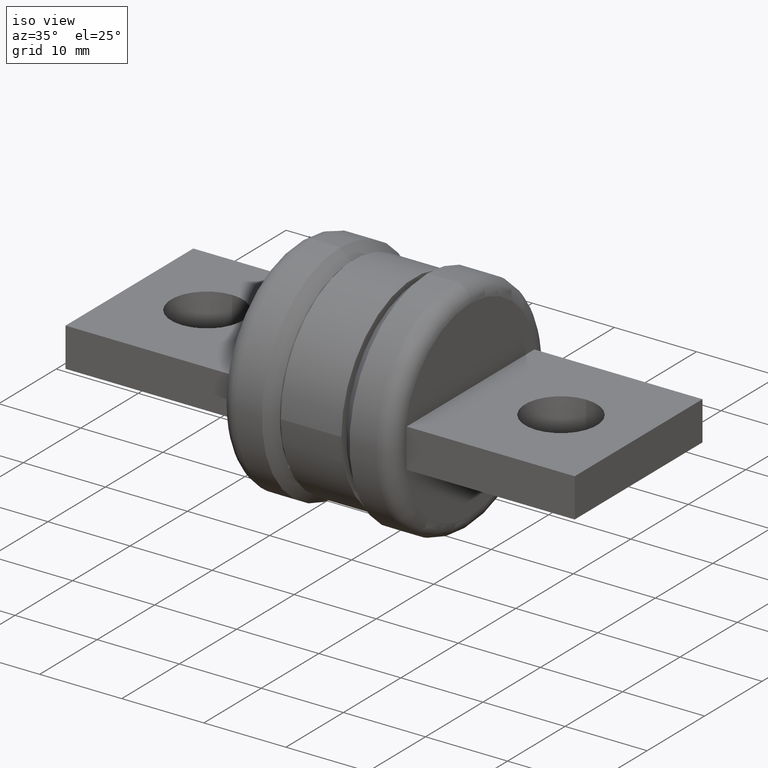
[diagram: clean part render]
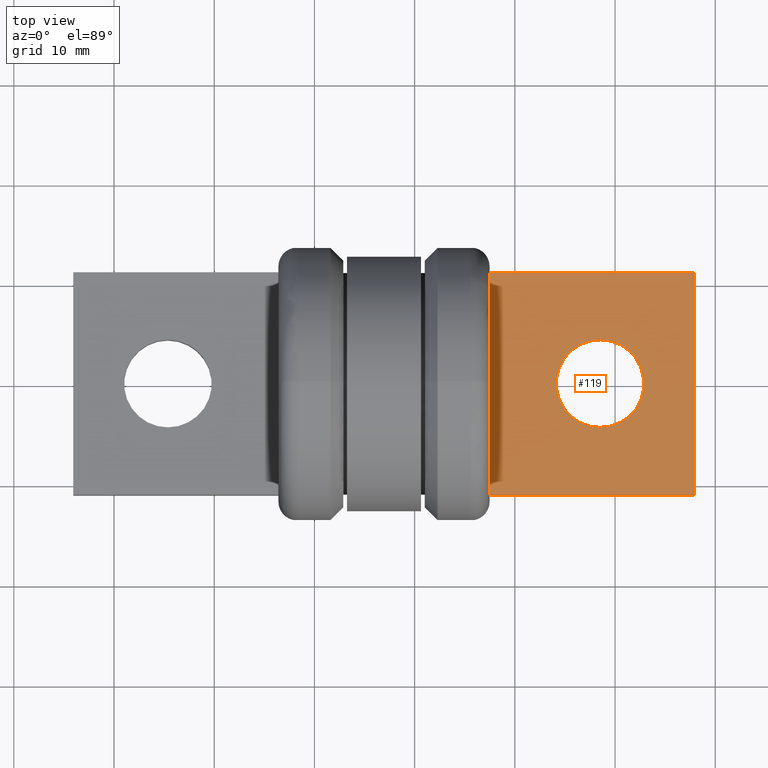
[diagram: tour spotlight — one face highlighted and labeled with its STEP entity id]
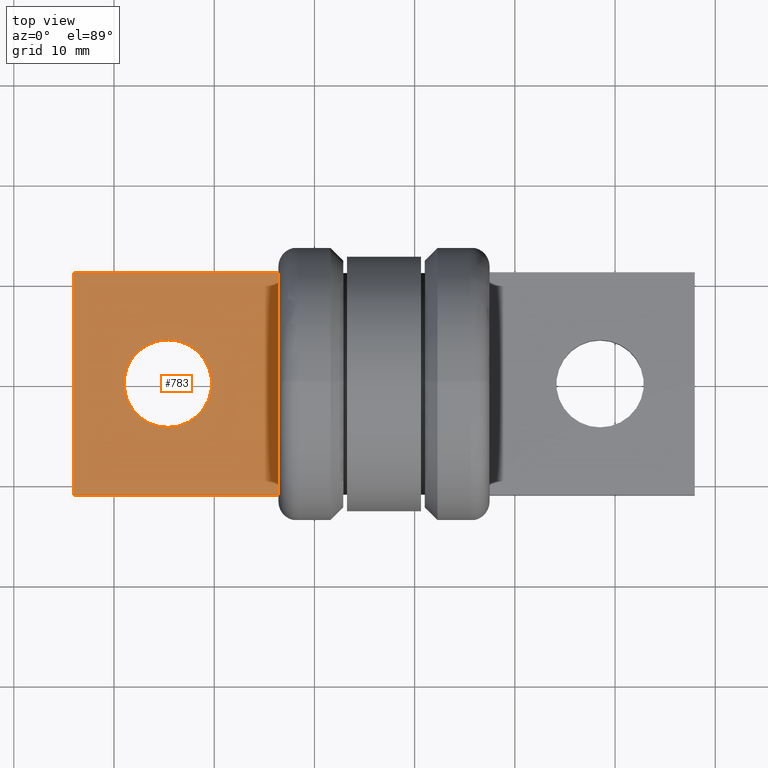
[diagram: tour spotlight — one face highlighted and labeled with its STEP entity id]
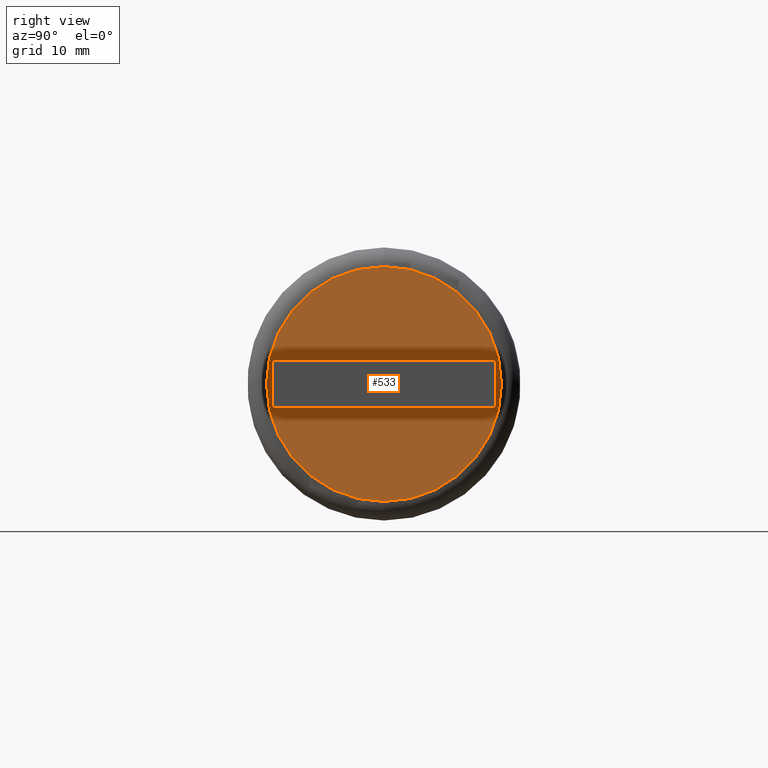
[diagram: tour spotlight — one face highlighted and labeled with its STEP entity id]
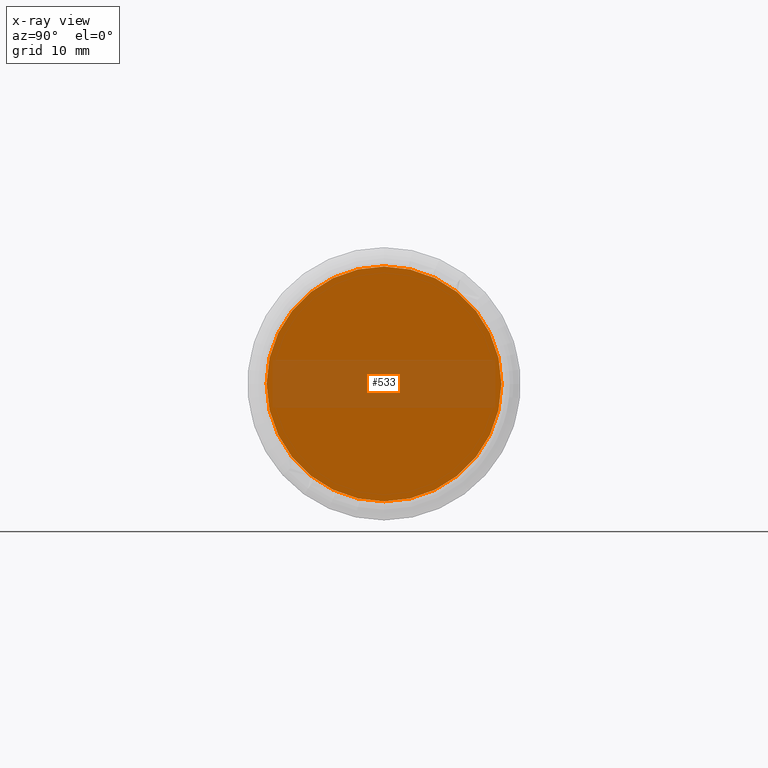
[diagram: x-ray of the same camera — body ghosted, this tour face saturated]
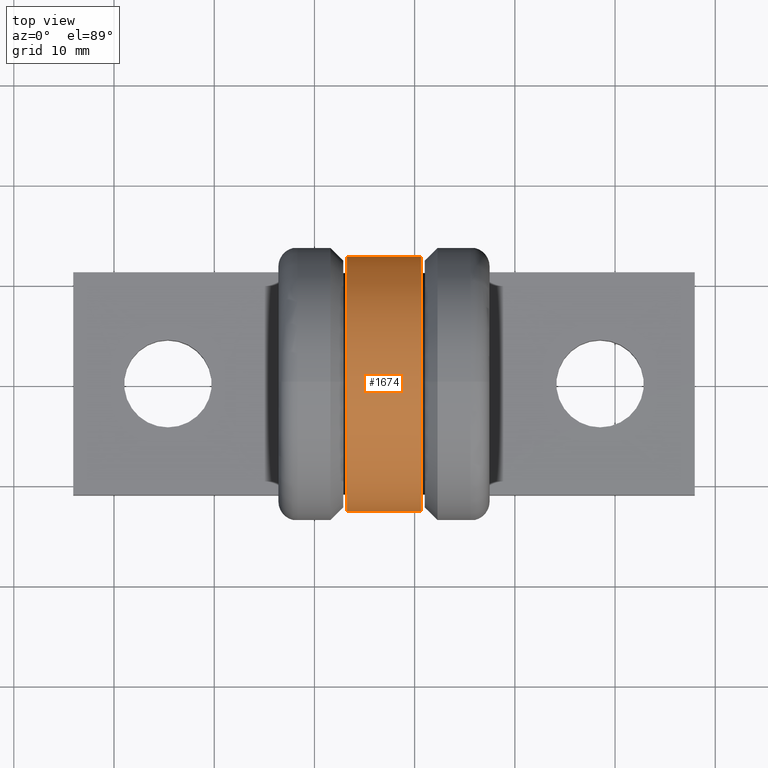
[diagram: tour spotlight — one face highlighted and labeled with its STEP entity id]
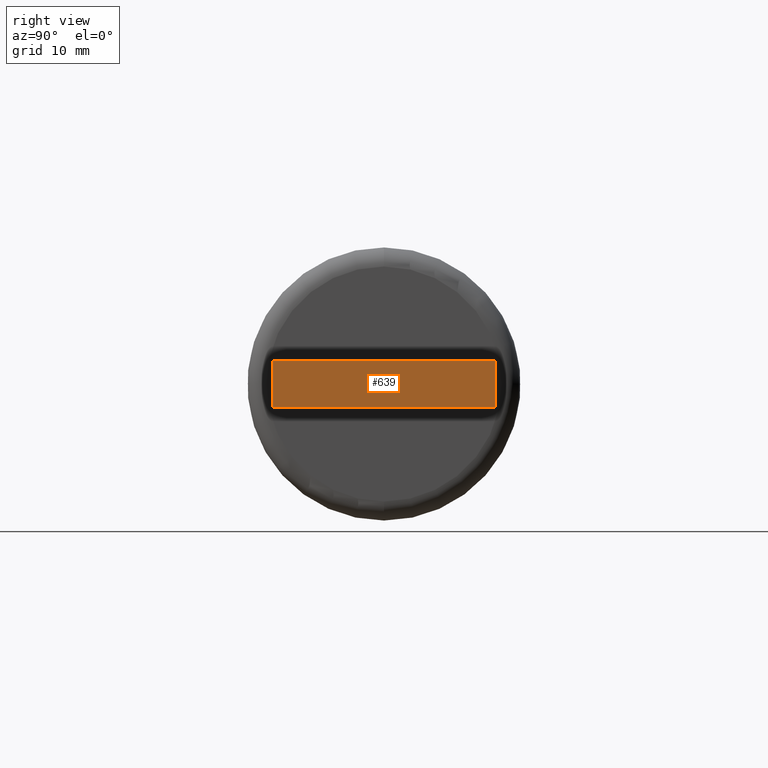
[diagram: tour spotlight — one face highlighted and labeled with its STEP entity id]
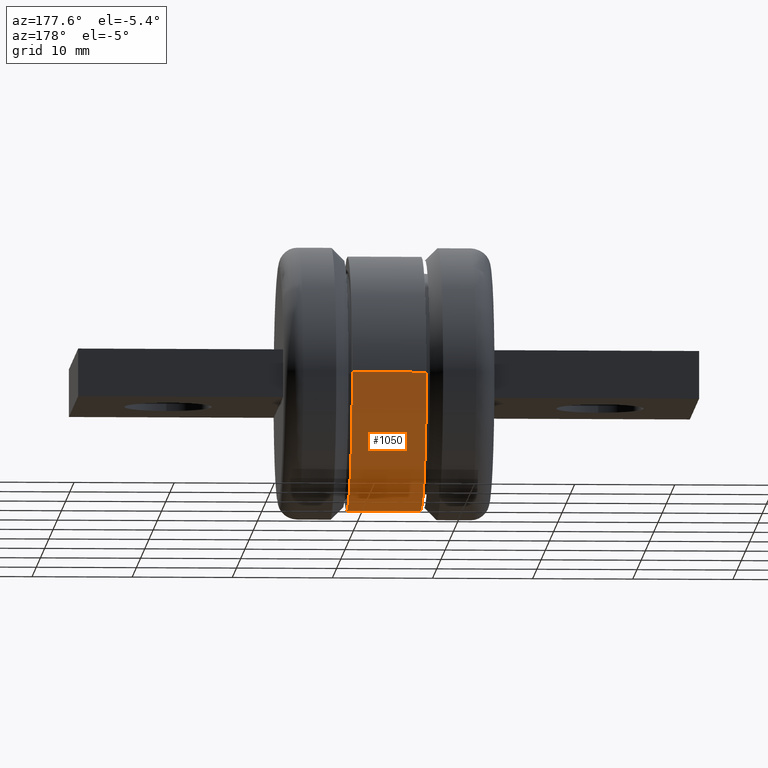
[diagram: tour spotlight — one face highlighted and labeled with its STEP entity id]
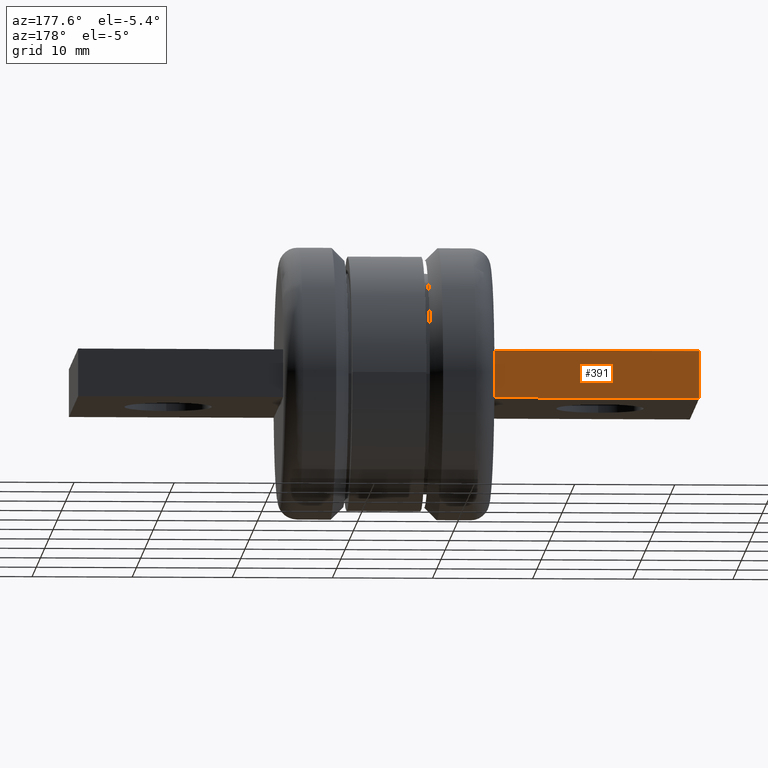
[diagram: tour spotlight — one face highlighted and labeled with its STEP entity id]
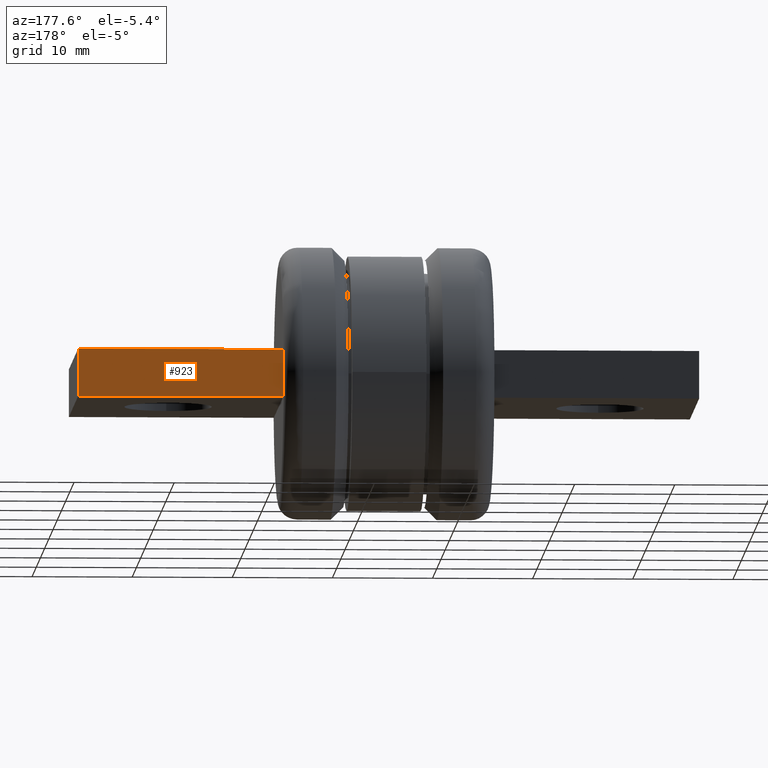
[diagram: tour spotlight — one face highlighted and labeled with its STEP entity id]
A machine part: a face-by-face anatomy tour. The part has 36 B-rep faces; the first image is the clean iso view, then the 8 largest visible faces are spotlighted one at a time (largest first), each with its STEP entity span.

Face 1 — top view, entity #119. In plain terms, the highlighted planar face has unit normal (-0, -0, -1).
Definition (entity closure, byte-faithful):
#56 = FACE_OUTER_BOUND ( 'NONE', #990, .T. ) ;
#58 = CARTESIAN_POINT ( 'NONE',  ( 1.494285667877459900, 0.4375000000000006700, 0.09374999999999990300 ) ) ;
#67 = LINE ( 'NONE', #58, #345 ) ;
#119 = ADVANCED_FACE ( 'NONE', ( #56, #861 ), #724, .F. ) ;
#131 = EDGE_CURVE ( 'NONE', #818, #1187, #1255, .T. ) ;
#204 = CARTESIAN_POINT ( 'NONE',  ( 0.6882856678774600400, -0.4374999999999998300, 0.09374999999999997200 ) ) ;
#314 = DIRECTION ( 'NONE',  ( -1.017949417668852400E-016, 1.000000000000000000, -1.110223024625156500E-016 ) ) ;
#316 = ORIENTED_EDGE ( 'NONE', *, *, #1305, .F. ) ;
#345 = VECTOR ( 'NONE', #1395, 39.37007874015748100 ) ;
#369 = DIRECTION ( 'NONE',  ( -6.808368128482753500E-017, -1.110223024625156000E-016, -1.000000000000000000 ) ) ;
#387 = DIRECTION ( 'NONE',  ( 1.000000000000000000, -6.767453674826764200E-017, -6.808368128482741200E-017 ) ) ;
#449 = CARTESIAN_POINT ( 'NONE',  ( 1.122285667877459800, 3.053635401030332600E-017, 0.09374999999999990300 ) ) ;
#467 = CARTESIAN_POINT ( 'NONE',  ( 0.6882856678774597100, 0.4375000000000001100, 0.09374999999999995800 ) ) ;
#511 = CARTESIAN_POINT ( 'NONE',  ( 1.494285667877459900, 0.4375000000000006700, 0.09374999999999990300 ) ) ;
#517 = LINE ( 'NONE', #204, #1087 ) ;
#532 = CARTESIAN_POINT ( 'NONE',  ( 0.6882856678774600400, -0.4374999999999998300, 0.09374999999999997200 ) ) ;
#573 = CARTESIAN_POINT ( 'NONE',  ( 0.6882856678774597100, 0.4375000000000001100, 0.09374999999999995800 ) ) ;
#582 = VERTEX_POINT ( 'NONE', #511 ) ;
#672 = CARTESIAN_POINT ( 'NONE',  ( 1.122285667877459800, 3.053635401030332600E-017, 0.09374999999999990300 ) ) ;
#688 = EDGE_CURVE ( 'NONE', #1546, #1157, #1492, .T. ) ;
#708 = AXIS2_PLACEMENT_3D ( 'NONE', #1641, #1364, #1286 ) ;
#724 = PLANE ( 'NONE',  #708 ) ;
#725 = LINE ( 'NONE', #467, #1040 ) ;
#738 = CARTESIAN_POINT ( 'NONE',  ( 1.122285667877459800, 0.1720000000000000400, 0.09374999999999988900 ) ) ;
#793 = EDGE_CURVE ( 'NONE', #1665, #818, #517, .T. ) ;
#818 = VERTEX_POINT ( 'NONE', #532 ) ;
#819 = DIRECTION ( 'NONE',  ( -6.808368128482753500E-017, -1.110223024625156000E-016, -1.000000000000000000 ) ) ;
#861 = FACE_BOUND ( 'NONE', #1010, .T. ) ;
#900 = AXIS2_PLACEMENT_3D ( 'NONE', #449, #369, #987 ) ;
#926 = CARTESIAN_POINT ( 'NONE',  ( 1.494285667877460100, -0.4374999999999992800, 0.09374999999999991700 ) ) ;
#987 = DIRECTION ( 'NONE',  ( 0.0000000000000000000, -1.000000000000000000, 9.926773232791653600E-017 ) ) ;
#990 = EDGE_LOOP ( 'NONE', ( #1352, #1134, #1233, #316 ) ) ;
#994 = CARTESIAN_POINT ( 'NONE',  ( 0.6882856678774597100, 0.4375000000000001100, 0.09374999999999995800 ) ) ;
#999 = CARTESIAN_POINT ( 'NONE',  ( 1.122285667877459800, -0.1719999999999999600, 0.09374999999999991700 ) ) ;
#1010 = EDGE_LOOP ( 'NONE', ( #1501, #1482 ) ) ;
#1040 = VECTOR ( 'NONE', #387, 39.37007874015748100 ) ;
#1087 = VECTOR ( 'NONE', #1108, 39.37007874015748100 ) ;
#1098 = AXIS2_PLACEMENT_3D ( 'NONE', #672, #819, #1588 ) ;
#1099 = EDGE_CURVE ( 'NONE', #1157, #1546, #1301, .T. ) ;
#1108 = DIRECTION ( 'NONE',  ( -1.000000000000000000, 6.767453674826764200E-017, 6.808368128482741200E-017 ) ) ;
#1134 = ORIENTED_EDGE ( 'NONE', *, *, #131, .F. ) ;
#1157 = VERTEX_POINT ( 'NONE', #738 ) ;
#1187 = VERTEX_POINT ( 'NONE', #994 ) ;
#1233 = ORIENTED_EDGE ( 'NONE', *, *, #793, .F. ) ;
#1255 = LINE ( 'NONE', #573, #1582 ) ;
#1286 = DIRECTION ( 'NONE',  ( 1.017949417668852400E-016, -1.000000000000000000, 1.110223024625156500E-016 ) ) ;
#1301 = CIRCLE ( 'NONE', #900, 0.1720000000000000100 ) ;
#1305 = EDGE_CURVE ( 'NONE', #582, #1665, #67, .T. ) ;
#1339 = EDGE_CURVE ( 'NONE', #1187, #582, #725, .T. ) ;
#1352 = ORIENTED_EDGE ( 'NONE', *, *, #1339, .F. ) ;
#1364 = DIRECTION ( 'NONE',  ( -6.808368128482753500E-017, -1.110223024625156500E-016, -1.000000000000000000 ) ) ;
#1395 = DIRECTION ( 'NONE',  ( 1.017949417668852400E-016, -1.000000000000000000, 1.110223024625156500E-016 ) ) ;
#1482 = ORIENTED_EDGE ( 'NONE', *, *, #688, .T. ) ;
#1492 = CIRCLE ( 'NONE', #1098, 0.1720000000000000100 ) ;
#1501 = ORIENTED_EDGE ( 'NONE', *, *, #1099, .T. ) ;
#1546 = VERTEX_POINT ( 'NONE', #999 ) ;
#1582 = VECTOR ( 'NONE', #314, 39.37007874015748100 ) ;
#1588 = DIRECTION ( 'NONE',  ( 0.0000000000000000000, -1.000000000000000000, 9.926773232791653600E-017 ) ) ;
#1641 = CARTESIAN_POINT ( 'NONE',  ( 1.494285667877459900, 0.4375000000000006700, 0.09374999999999990300 ) ) ;
#1665 = VERTEX_POINT ( 'NONE', #926 ) ;

Face 2 — top view, entity #783. In plain terms, the highlighted planar face has unit normal (0, -0, 1).
Definition (entity closure, byte-faithful):
#42 = LINE ( 'NONE', #1259, #1223 ) ;
#69 = DIRECTION ( 'NONE',  ( -3.491481338843133000E-015, -1.000000000000000000, -1.232595164407830900E-032 ) ) ;
#78 = ORIENTED_EDGE ( 'NONE', *, *, #576, .T. ) ;
#89 = EDGE_CURVE ( 'NONE', #613, #474, #1570, .T. ) ;
#106 = CARTESIAN_POINT ( 'NONE',  ( -0.9477143321225389700, 0.4375000000000039400, 0.09375000000000001400 ) ) ;
#107 = VECTOR ( 'NONE', #1056, 39.37007874015748100 ) ;
#121 = DIRECTION ( 'NONE',  ( -1.000000000000000000, 3.322011860327980100E-015, -4.930380657631323800E-032 ) ) ;
#205 = FACE_BOUND ( 'NONE', #230, .T. ) ;
#227 = VERTEX_POINT ( 'NONE', #709 ) ;
#230 = EDGE_LOOP ( 'NONE', ( #1584, #1418 ) ) ;
#231 = AXIS2_PLACEMENT_3D ( 'NONE', #1390, #1515, #650 ) ;
#233 = CARTESIAN_POINT ( 'NONE',  ( -0.5757143321225404200, 2.010095847110387900E-015, 0.09375000000000006900 ) ) ;
#239 = EDGE_CURVE ( 'NONE', #560, #312, #1013, .T. ) ;
#276 = VECTOR ( 'NONE', #121, 39.37007874015748100 ) ;
#291 = ORIENTED_EDGE ( 'NONE', *, *, #89, .T. ) ;
#312 = VERTEX_POINT ( 'NONE', #1257 ) ;
#459 = VERTEX_POINT ( 'NONE', #912 ) ;
#474 = VERTEX_POINT ( 'NONE', #1415 ) ;
#493 = ORIENTED_EDGE ( 'NONE', *, *, #1044, .T. ) ;
#500 = DIRECTION ( 'NONE',  ( 4.930380657631341300E-032, 4.930380657631306800E-032, 1.000000000000000000 ) ) ;
#506 = DIRECTION ( 'NONE',  ( 4.930380657631319400E-032, -1.232595164407848200E-032, 1.000000000000000000 ) ) ;
#518 = FACE_OUTER_BOUND ( 'NONE', #992, .T. ) ;
#560 = VERTEX_POINT ( 'NONE', #968 ) ;
#569 = DIRECTION ( 'NONE',  ( -3.491481338843133000E-015, -1.000000000000000000, -1.232595164407830900E-032 ) ) ;
#576 = EDGE_CURVE ( 'NONE', #312, #613, #1345, .T. ) ;
#613 = VERTEX_POINT ( 'NONE', #798 ) ;
#650 = DIRECTION ( 'NONE',  ( -3.573638363804995400E-015, -1.000000000000000000, 0.0000000000000000000 ) ) ;
#709 = CARTESIAN_POINT ( 'NONE',  ( -0.5757143321225409700, -0.1719999999999979900, 0.09375000000000006900 ) ) ;
#745 = DIRECTION ( 'NONE',  ( 3.491481338843133000E-015, 1.000000000000000000, 1.232595164407830900E-032 ) ) ;
#783 = ADVANCED_FACE ( 'NONE', ( #518, #205 ), #875, .T. ) ;
#787 = VECTOR ( 'NONE', #569, 39.37007874015748100 ) ;
#798 = CARTESIAN_POINT ( 'NONE',  ( -0.9477143321225423000, -0.4374999999999960000, 0.09375000000000006900 ) ) ;
#841 = ORIENTED_EDGE ( 'NONE', *, *, #239, .T. ) ;
#875 = PLANE ( 'NONE',  #1367 ) ;
#891 = EDGE_CURVE ( 'NONE', #459, #227, #1563, .T. ) ;
#912 = CARTESIAN_POINT ( 'NONE',  ( -0.5757143321225398600, 0.1720000000000020100, 0.09375000000000006900 ) ) ;
#968 = CARTESIAN_POINT ( 'NONE',  ( -0.1417143321225388900, 0.4375000000000006700, 0.09375000000000001400 ) ) ;
#992 = EDGE_LOOP ( 'NONE', ( #841, #78, #291, #493 ) ) ;
#1013 = LINE ( 'NONE', #1017, #276 ) ;
#1017 = CARTESIAN_POINT ( 'NONE',  ( -0.1417143321225388900, 0.4375000000000006700, 0.09375000000000001400 ) ) ;
#1044 = EDGE_CURVE ( 'NONE', #474, #560, #42, .T. ) ;
#1056 = DIRECTION ( 'NONE',  ( 1.000000000000000000, -3.322011860327980100E-015, 4.930380657631323800E-032 ) ) ;
#1198 = CARTESIAN_POINT ( 'NONE',  ( -0.9477143321225389700, 0.4375000000000039400, 0.09375000000000001400 ) ) ;
#1223 = VECTOR ( 'NONE', #745, 39.37007874015748100 ) ;
#1257 = CARTESIAN_POINT ( 'NONE',  ( -0.9477143321225389700, 0.4375000000000039400, 0.09375000000000001400 ) ) ;
#1259 = CARTESIAN_POINT ( 'NONE',  ( -0.1417143321225388900, 0.4375000000000006700, 0.09375000000000001400 ) ) ;
#1345 = LINE ( 'NONE', #1198, #787 ) ;
#1367 = AXIS2_PLACEMENT_3D ( 'NONE', #106, #506, #69 ) ;
#1390 = CARTESIAN_POINT ( 'NONE',  ( -0.5757143321225404200, 2.010095847110387900E-015, 0.09375000000000006900 ) ) ;
#1400 = EDGE_CURVE ( 'NONE', #227, #459, #1677, .T. ) ;
#1415 = CARTESIAN_POINT ( 'NONE',  ( -0.1417143321225421700, -0.4374999999999992800, 0.09375000000000006900 ) ) ;
#1418 = ORIENTED_EDGE ( 'NONE', *, *, #1400, .F. ) ;
#1449 = AXIS2_PLACEMENT_3D ( 'NONE', #233, #500, #1651 ) ;
#1515 = DIRECTION ( 'NONE',  ( 4.930380657631341300E-032, 4.930380657631306800E-032, 1.000000000000000000 ) ) ;
#1563 = CIRCLE ( 'NONE', #1449, 0.1720000000000000100 ) ;
#1570 = LINE ( 'NONE', #1601, #107 ) ;
#1584 = ORIENTED_EDGE ( 'NONE', *, *, #891, .F. ) ;
#1601 = CARTESIAN_POINT ( 'NONE',  ( -0.1417143321225421700, -0.4374999999999992800, 0.09375000000000006900 ) ) ;
#1651 = DIRECTION ( 'NONE',  ( -3.573638363804995400E-015, -1.000000000000000000, 0.0000000000000000000 ) ) ;
#1677 = CIRCLE ( 'NONE', #231, 0.1720000000000000100 ) ;

Face 3 — right view, entity #533. An x-ray twin of the same camera follows (body ghosted, this face saturated) — the face is partly hidden behind the body. In plain terms, the highlighted planar face has unit normal (-1, -0, 0).
Definition (entity closure, byte-faithful):
#8 = VERTEX_POINT ( 'NONE', #949 ) ;
#51 = DIRECTION ( 'NONE',  ( 0.0000000000000000000, -1.110223024625155900E-016, -1.000000000000000000 ) ) ;
#53 = AXIS2_PLACEMENT_3D ( 'NONE', #1216, #319, #1417 ) ;
#313 = ORIENTED_EDGE ( 'NONE', *, *, #1183, .T. ) ;
#319 = DIRECTION ( 'NONE',  ( -1.000000000000000000, -1.017949417668852200E-016, 6.808368128482754800E-017 ) ) ;
#340 = CARTESIAN_POINT ( 'NONE',  ( 0.6882856678774597100, -2.405099157240122500E-017, 3.791200677927629700E-033 ) ) ;
#368 = FACE_OUTER_BOUND ( 'NONE', #867, .T. ) ;
#371 = AXIS2_PLACEMENT_3D ( 'NONE', #340, #1125, #468 ) ;
#385 = CIRCLE ( 'NONE', #371, 0.4614999999999999100 ) ;
#404 = ORIENTED_EDGE ( 'NONE', *, *, #1574, .T. ) ;
#439 = CARTESIAN_POINT ( 'NONE',  ( 0.6882856678774597100, -7.528778415885216500E-017, -0.4614999999999999100 ) ) ;
#468 = DIRECTION ( 'NONE',  ( 0.0000000000000000000, -1.110223024625155900E-016, -1.000000000000000000 ) ) ;
#533 = ADVANCED_FACE ( 'NONE', ( #368 ), #1348, .F. ) ;
#578 = DIRECTION ( 'NONE',  ( 1.000000000000000000, 1.017949417668852000E-016, -6.808368128482743700E-017 ) ) ;
#694 = AXIS2_PLACEMENT_3D ( 'NONE', #755, #578, #51 ) ;
#750 = VERTEX_POINT ( 'NONE', #439 ) ;
#755 = CARTESIAN_POINT ( 'NONE',  ( 0.6882856678774597100, -2.405099157240122500E-017, 3.791200677927629700E-033 ) ) ;
#854 = CIRCLE ( 'NONE', #694, 0.4614999999999999100 ) ;
#867 = EDGE_LOOP ( 'NONE', ( #404, #313 ) ) ;
#949 = CARTESIAN_POINT ( 'NONE',  ( 0.6882856678774597100, -3.357804823731700700E-017, 0.4614999999999999100 ) ) ;
#1125 = DIRECTION ( 'NONE',  ( 1.000000000000000000, 1.017949417668852000E-016, -6.808368128482743700E-017 ) ) ;
#1183 = EDGE_CURVE ( 'NONE', #8, #750, #385, .T. ) ;
#1216 = CARTESIAN_POINT ( 'NONE',  ( 0.6882856678774597100, -2.405099157240122500E-017, 3.791200677927629700E-033 ) ) ;
#1348 = PLANE ( 'NONE',  #53 ) ;
#1417 = DIRECTION ( 'NONE',  ( -6.808368128482753500E-017, -1.110223024625156200E-016, -1.000000000000000000 ) ) ;
#1574 = EDGE_CURVE ( 'NONE', #750, #8, #854, .T. ) ;

Face 4 — top view, entity #1674. In plain terms, the highlighted cylindrical surface (partial cylindrical patch) has radius 12.7 mm, axis along (1, -0, 0).
Definition (entity closure, byte-faithful):
#45 = CARTESIAN_POINT ( 'NONE',  ( 1.374788066697518500, -4.800046879738614200E-015, 7.476934094393934600E-032 ) ) ;
#161 = LINE ( 'NONE', #1539, #813 ) ;
#221 = DIRECTION ( 'NONE',  ( 3.551402391763535300E-015, 1.000000000000000000, 2.841969657093302700E-045 ) ) ;
#292 = DIRECTION ( 'NONE',  ( 3.278217592397109200E-015, 1.000000000000000000, 2.855438707600853300E-045 ) ) ;
#322 = AXIS2_PLACEMENT_3D ( 'NONE', #1639, #1165, #221 ) ;
#402 = ORIENTED_EDGE ( 'NONE', *, *, #540, .F. ) ;
#422 = EDGE_LOOP ( 'NONE', ( #969, #1398, #1253, #402 ) ) ;
#527 = VERTEX_POINT ( 'NONE', #680 ) ;
#540 = EDGE_CURVE ( 'NONE', #865, #637, #1530, .T. ) ;
#550 = CIRCLE ( 'NONE', #322, 0.5000000000000010000 ) ;
#625 = DIRECTION ( 'NONE',  ( 1.000000000000000000, -3.491481338843132600E-015, 1.848892746611748600E-032 ) ) ;
#628 = DIRECTION ( 'NONE',  ( 3.483106191921928500E-015, 1.000000000000000000, 2.841969657093302700E-045 ) ) ;
#637 = VERTEX_POINT ( 'NONE', #712 ) ;
#664 = AXIS2_PLACEMENT_3D ( 'NONE', #45, #1281, #292 ) ;
#680 = CARTESIAN_POINT ( 'NONE',  ( 0.4187856678774579100, -0.5000000000000014400, 6.123233995736777100E-017 ) ) ;
#686 = CARTESIAN_POINT ( 'NONE',  ( 0.1277856678774598500, -4.461612747657581100E-016, 5.171360404208083200E-032 ) ) ;
#690 = DIRECTION ( 'NONE',  ( 1.000000000000000000, -3.491481338843132600E-015, 1.848892746611748600E-032 ) ) ;
#712 = CARTESIAN_POINT ( 'NONE',  ( 0.4187856678774614600, 0.4999999999999996100, 5.709388193472240100E-032 ) ) ;
#752 = EDGE_CURVE ( 'NONE', #865, #1155, #1613, .T. ) ;
#762 = CARTESIAN_POINT ( 'NONE',  ( 0.1277856678774616000, 0.5000000000000005600, 5.171360404208225600E-032 ) ) ;
#813 = VECTOR ( 'NONE', #625, 39.37007874015748100 ) ;
#865 = VERTEX_POINT ( 'NONE', #762 ) ;
#881 = CARTESIAN_POINT ( 'NONE',  ( 0.1277856678774581300, -0.5000000000000004400, 6.123233995736772200E-017 ) ) ;
#886 = EDGE_CURVE ( 'NONE', #1155, #527, #161, .T. ) ;
#969 = ORIENTED_EDGE ( 'NONE', *, *, #752, .T. ) ;
#1131 = CYLINDRICAL_SURFACE ( 'NONE', #664, 0.5000000000000010000 ) ;
#1155 = VERTEX_POINT ( 'NONE', #881 ) ;
#1165 = DIRECTION ( 'NONE',  ( 1.000000000000000000, -3.491481338843132600E-015, 1.848892746611748600E-032 ) ) ;
#1182 = AXIS2_PLACEMENT_3D ( 'NONE', #686, #1451, #628 ) ;
#1220 = EDGE_CURVE ( 'NONE', #637, #527, #550, .T. ) ;
#1253 = ORIENTED_EDGE ( 'NONE', *, *, #1220, .F. ) ;
#1281 = DIRECTION ( 'NONE',  ( 1.000000000000000000, -3.491481338843132600E-015, 1.848892746611748600E-032 ) ) ;
#1398 = ORIENTED_EDGE ( 'NONE', *, *, #886, .T. ) ;
#1451 = DIRECTION ( 'NONE',  ( 1.000000000000000000, -3.491481338843132600E-015, 1.848892746611748600E-032 ) ) ;
#1530 = LINE ( 'NONE', #1636, #1631 ) ;
#1539 = CARTESIAN_POINT ( 'NONE',  ( 1.374788066697516700, -0.5000000000000057700, 6.123233995736785800E-017 ) ) ;
#1613 = CIRCLE ( 'NONE', #1182, 0.5000000000000010000 ) ;
#1631 = VECTOR ( 'NONE', #690, 39.37007874015748100 ) ;
#1636 = CARTESIAN_POINT ( 'NONE',  ( 1.374788066697520100, 0.4999999999999962300, 7.476934094394076900E-032 ) ) ;
#1639 = CARTESIAN_POINT ( 'NONE',  ( 0.4187856678774596900, -1.462182344369108700E-015, 5.709388193472097800E-032 ) ) ;
#1674 = ADVANCED_FACE ( 'NONE', ( #1682 ), #1131, .T. ) ;
#1682 = FACE_OUTER_BOUND ( 'NONE', #422, .T. ) ;

Face 5 — right view, entity #639. In plain terms, the highlighted planar face has unit normal (-1, -0, 0).
Definition (entity closure, byte-faithful):
#58 = CARTESIAN_POINT ( 'NONE',  ( 1.494285667877459900, 0.4375000000000006700, 0.09374999999999990300 ) ) ;
#67 = LINE ( 'NONE', #58, #345 ) ;
#86 = DIRECTION ( 'NONE',  ( 1.017949417668852400E-016, -1.000000000000000000, 1.110223024625156500E-016 ) ) ;
#109 = CARTESIAN_POINT ( 'NONE',  ( 1.494285667877459900, 0.4375000000000006700, -0.09375000000000011100 ) ) ;
#151 = EDGE_CURVE ( 'NONE', #396, #1665, #1439, .T. ) ;
#242 = DIRECTION ( 'NONE',  ( 6.808368128482753500E-017, 1.110223024625156200E-016, 1.000000000000000000 ) ) ;
#275 = VERTEX_POINT ( 'NONE', #797 ) ;
#345 = VECTOR ( 'NONE', #1395, 39.37007874015748100 ) ;
#379 = CARTESIAN_POINT ( 'NONE',  ( 1.494285667877460100, -0.4374999999999992800, -0.09375000000000009700 ) ) ;
#396 = VERTEX_POINT ( 'NONE', #1059 ) ;
#473 = ORIENTED_EDGE ( 'NONE', *, *, #735, .T. ) ;
#511 = CARTESIAN_POINT ( 'NONE',  ( 1.494285667877459900, 0.4375000000000006700, 0.09374999999999990300 ) ) ;
#512 = VECTOR ( 'NONE', #1316, 39.37007874015748100 ) ;
#582 = VERTEX_POINT ( 'NONE', #511 ) ;
#623 = FACE_OUTER_BOUND ( 'NONE', #661, .T. ) ;
#639 = ADVANCED_FACE ( 'NONE', ( #623 ), #982, .F. ) ;
#661 = EDGE_LOOP ( 'NONE', ( #1465, #733, #1667, #473 ) ) ;
#733 = ORIENTED_EDGE ( 'NONE', *, *, #151, .F. ) ;
#735 = EDGE_CURVE ( 'NONE', #275, #582, #1196, .T. ) ;
#797 = CARTESIAN_POINT ( 'NONE',  ( 1.494285667877459900, 0.4375000000000006700, -0.09375000000000011100 ) ) ;
#822 = VECTOR ( 'NONE', #242, 39.37007874015748100 ) ;
#824 = VECTOR ( 'NONE', #86, 39.37007874015748100 ) ;
#926 = CARTESIAN_POINT ( 'NONE',  ( 1.494285667877460100, -0.4374999999999992800, 0.09374999999999991700 ) ) ;
#982 = PLANE ( 'NONE',  #1018 ) ;
#1018 = AXIS2_PLACEMENT_3D ( 'NONE', #1456, #1203, #1210 ) ;
#1059 = CARTESIAN_POINT ( 'NONE',  ( 1.494285667877460100, -0.4374999999999992800, -0.09375000000000009700 ) ) ;
#1101 = LINE ( 'NONE', #1633, #824 ) ;
#1149 = EDGE_CURVE ( 'NONE', #275, #396, #1101, .T. ) ;
#1196 = LINE ( 'NONE', #109, #512 ) ;
#1203 = DIRECTION ( 'NONE',  ( -1.000000000000000000, -1.017949417668851900E-016, 6.808368128482754800E-017 ) ) ;
#1210 = DIRECTION ( 'NONE',  ( -6.808368128482753500E-017, -1.110223024625156200E-016, -1.000000000000000000 ) ) ;
#1305 = EDGE_CURVE ( 'NONE', #582, #1665, #67, .T. ) ;
#1316 = DIRECTION ( 'NONE',  ( 6.808368128482753500E-017, 1.110223024625156200E-016, 1.000000000000000000 ) ) ;
#1395 = DIRECTION ( 'NONE',  ( 1.017949417668852400E-016, -1.000000000000000000, 1.110223024625156500E-016 ) ) ;
#1439 = LINE ( 'NONE', #379, #822 ) ;
#1456 = CARTESIAN_POINT ( 'NONE',  ( 1.494285667877459900, 0.4375000000000006700, -0.09375000000000011100 ) ) ;
#1465 = ORIENTED_EDGE ( 'NONE', *, *, #1305, .T. ) ;
#1633 = CARTESIAN_POINT ( 'NONE',  ( 1.494285667877459900, 0.4375000000000006700, -0.09375000000000011100 ) ) ;
#1665 = VERTEX_POINT ( 'NONE', #926 ) ;
#1667 = ORIENTED_EDGE ( 'NONE', *, *, #1149, .F. ) ;

Face 6 — auxiliary view, entity #1050. In plain terms, the highlighted cylindrical surface (partial cylindrical patch) has radius 12.7 mm, axis along (1, -0, 0).
Definition (entity closure, byte-faithful):
#161 = LINE ( 'NONE', #1539, #813 ) ;
#277 = FACE_OUTER_BOUND ( 'NONE', #777, .T. ) ;
#307 = EDGE_CURVE ( 'NONE', #1155, #865, #1093, .T. ) ;
#309 = CIRCLE ( 'NONE', #1199, 0.5000000000000010000 ) ;
#392 = CARTESIAN_POINT ( 'NONE',  ( 0.1277856678774598500, -4.461612747657581100E-016, 5.171360404208083200E-032 ) ) ;
#527 = VERTEX_POINT ( 'NONE', #680 ) ;
#540 = EDGE_CURVE ( 'NONE', #865, #637, #1530, .T. ) ;
#625 = DIRECTION ( 'NONE',  ( 1.000000000000000000, -3.491481338843132600E-015, 1.848892746611748600E-032 ) ) ;
#637 = VERTEX_POINT ( 'NONE', #712 ) ;
#680 = CARTESIAN_POINT ( 'NONE',  ( 0.4187856678774579100, -0.5000000000000014400, 6.123233995736777100E-017 ) ) ;
#690 = DIRECTION ( 'NONE',  ( 1.000000000000000000, -3.491481338843132600E-015, 1.848892746611748600E-032 ) ) ;
#712 = CARTESIAN_POINT ( 'NONE',  ( 0.4187856678774614600, 0.4999999999999996100, 5.709388193472240100E-032 ) ) ;
#757 = AXIS2_PLACEMENT_3D ( 'NONE', #392, #1606, #1567 ) ;
#762 = CARTESIAN_POINT ( 'NONE',  ( 0.1277856678774616000, 0.5000000000000005600, 5.171360404208225600E-032 ) ) ;
#777 = EDGE_LOOP ( 'NONE', ( #1055, #1005, #1206, #950 ) ) ;
#813 = VECTOR ( 'NONE', #625, 39.37007874015748100 ) ;
#865 = VERTEX_POINT ( 'NONE', #762 ) ;
#881 = CARTESIAN_POINT ( 'NONE',  ( 0.1277856678774581300, -0.5000000000000004400, 6.123233995736772200E-017 ) ) ;
#886 = EDGE_CURVE ( 'NONE', #1155, #527, #161, .T. ) ;
#889 = DIRECTION ( 'NONE',  ( 1.000000000000000000, -3.491481338843132600E-015, 1.848892746611748600E-032 ) ) ;
#925 = EDGE_CURVE ( 'NONE', #527, #637, #309, .T. ) ;
#950 = ORIENTED_EDGE ( 'NONE', *, *, #925, .F. ) ;
#1005 = ORIENTED_EDGE ( 'NONE', *, *, #307, .T. ) ;
#1050 = ADVANCED_FACE ( 'NONE', ( #277 ), #1425, .T. ) ;
#1055 = ORIENTED_EDGE ( 'NONE', *, *, #886, .F. ) ;
#1093 = CIRCLE ( 'NONE', #757, 0.5000000000000010000 ) ;
#1155 = VERTEX_POINT ( 'NONE', #881 ) ;
#1199 = AXIS2_PLACEMENT_3D ( 'NONE', #1226, #1555, #1604 ) ;
#1206 = ORIENTED_EDGE ( 'NONE', *, *, #540, .T. ) ;
#1226 = CARTESIAN_POINT ( 'NONE',  ( 0.4187856678774596900, -1.462182344369108700E-015, 5.709388193472097800E-032 ) ) ;
#1410 = DIRECTION ( 'NONE',  ( 3.278217592397109200E-015, 1.000000000000000000, 2.855438707600853300E-045 ) ) ;
#1425 = CYLINDRICAL_SURFACE ( 'NONE', #1562, 0.5000000000000010000 ) ;
#1523 = CARTESIAN_POINT ( 'NONE',  ( 1.374788066697518500, -4.800046879738614200E-015, 7.476934094393934600E-032 ) ) ;
#1530 = LINE ( 'NONE', #1636, #1631 ) ;
#1539 = CARTESIAN_POINT ( 'NONE',  ( 1.374788066697516700, -0.5000000000000057700, 6.123233995736785800E-017 ) ) ;
#1555 = DIRECTION ( 'NONE',  ( 1.000000000000000000, -3.491481338843132600E-015, 1.848892746611748600E-032 ) ) ;
#1562 = AXIS2_PLACEMENT_3D ( 'NONE', #1523, #889, #1410 ) ;
#1567 = DIRECTION ( 'NONE',  ( 3.483106191921928500E-015, 1.000000000000000000, 2.841969657093302700E-045 ) ) ;
#1604 = DIRECTION ( 'NONE',  ( 3.551402391763535300E-015, 1.000000000000000000, 2.841969657093302700E-045 ) ) ;
#1606 = DIRECTION ( 'NONE',  ( 1.000000000000000000, -3.491481338843132600E-015, 1.848892746611748600E-032 ) ) ;
#1631 = VECTOR ( 'NONE', #690, 39.37007874015748100 ) ;
#1636 = CARTESIAN_POINT ( 'NONE',  ( 1.374788066697520100, 0.4999999999999962300, 7.476934094394076900E-032 ) ) ;

Face 7 — auxiliary view, entity #391. In plain terms, the highlighted planar face has unit normal (-0, -1, -0).
Definition (entity closure, byte-faithful):
#14 = CARTESIAN_POINT ( 'NONE',  ( -0.1417143321225388900, 0.4375000000000006700, 0.09375000000000001400 ) ) ;
#39 = VECTOR ( 'NONE', #257, 39.37007874015748100 ) ;
#121 = DIRECTION ( 'NONE',  ( -1.000000000000000000, 3.322011860327980100E-015, -4.930380657631323800E-032 ) ) ;
#122 = CARTESIAN_POINT ( 'NONE',  ( -0.1417143321225388900, 0.4375000000000006700, -0.09375000000000001400 ) ) ;
#200 = VECTOR ( 'NONE', #1074, 39.37007874015748100 ) ;
#239 = EDGE_CURVE ( 'NONE', #560, #312, #1013, .T. ) ;
#256 = PLANE ( 'NONE',  #1404 ) ;
#257 = DIRECTION ( 'NONE',  ( -4.930380657631342400E-032, -4.930380657631307900E-032, -1.000000000000000000 ) ) ;
#276 = VECTOR ( 'NONE', #121, 39.37007874015748100 ) ;
#312 = VERTEX_POINT ( 'NONE', #1257 ) ;
#334 = ORIENTED_EDGE ( 'NONE', *, *, #684, .T. ) ;
#342 = EDGE_CURVE ( 'NONE', #1031, #1057, #604, .T. ) ;
#365 = CARTESIAN_POINT ( 'NONE',  ( -0.1417143321225388900, 0.4375000000000006700, -0.09375000000000001400 ) ) ;
#391 = ADVANCED_FACE ( 'NONE', ( #1078 ), #256, .F. ) ;
#455 = DIRECTION ( 'NONE',  ( 1.000000000000000000, -3.322011860327980100E-015, 4.930380657631323800E-032 ) ) ;
#488 = EDGE_CURVE ( 'NONE', #312, #1057, #1381, .T. ) ;
#560 = VERTEX_POINT ( 'NONE', #968 ) ;
#604 = LINE ( 'NONE', #122, #1419 ) ;
#635 = EDGE_LOOP ( 'NONE', ( #753, #1518, #946, #334 ) ) ;
#684 = EDGE_CURVE ( 'NONE', #560, #1031, #1557, .T. ) ;
#753 = ORIENTED_EDGE ( 'NONE', *, *, #342, .T. ) ;
#946 = ORIENTED_EDGE ( 'NONE', *, *, #239, .F. ) ;
#968 = CARTESIAN_POINT ( 'NONE',  ( -0.1417143321225388900, 0.4375000000000006700, 0.09375000000000001400 ) ) ;
#980 = DIRECTION ( 'NONE',  ( -3.322011860327980100E-015, -1.000000000000000000, -1.232595164407830900E-032 ) ) ;
#1011 = DIRECTION ( 'NONE',  ( -1.000000000000000000, 3.322011860327980100E-015, -4.930380657631323800E-032 ) ) ;
#1013 = LINE ( 'NONE', #1017, #276 ) ;
#1017 = CARTESIAN_POINT ( 'NONE',  ( -0.1417143321225388900, 0.4375000000000006700, 0.09375000000000001400 ) ) ;
#1031 = VERTEX_POINT ( 'NONE', #365 ) ;
#1057 = VERTEX_POINT ( 'NONE', #1657 ) ;
#1074 = DIRECTION ( 'NONE',  ( -4.930380657631342400E-032, -4.930380657631307900E-032, -1.000000000000000000 ) ) ;
#1078 = FACE_OUTER_BOUND ( 'NONE', #635, .T. ) ;
#1150 = CARTESIAN_POINT ( 'NONE',  ( -0.9477143321225389700, 0.4375000000000039400, 0.09375000000000001400 ) ) ;
#1163 = CARTESIAN_POINT ( 'NONE',  ( -0.1417143321225388900, 0.4375000000000006700, 0.09375000000000001400 ) ) ;
#1257 = CARTESIAN_POINT ( 'NONE',  ( -0.9477143321225389700, 0.4375000000000039400, 0.09375000000000001400 ) ) ;
#1381 = LINE ( 'NONE', #1150, #39 ) ;
#1404 = AXIS2_PLACEMENT_3D ( 'NONE', #1163, #980, #455 ) ;
#1419 = VECTOR ( 'NONE', #1011, 39.37007874015748100 ) ;
#1518 = ORIENTED_EDGE ( 'NONE', *, *, #488, .F. ) ;
#1557 = LINE ( 'NONE', #14, #200 ) ;
#1657 = CARTESIAN_POINT ( 'NONE',  ( -0.9477143321225389700, 0.4375000000000039400, -0.09375000000000001400 ) ) ;

Face 8 — auxiliary view, entity #923. In plain terms, the highlighted planar face has unit normal (-0, -1, 0).
Definition (entity closure, byte-faithful):
#109 = CARTESIAN_POINT ( 'NONE',  ( 1.494285667877459900, 0.4375000000000006700, -0.09375000000000011100 ) ) ;
#120 = LINE ( 'NONE', #981, #571 ) ;
#144 = ORIENTED_EDGE ( 'NONE', *, *, #1339, .T. ) ;
#222 = FACE_OUTER_BOUND ( 'NONE', #577, .T. ) ;
#275 = VERTEX_POINT ( 'NONE', #797 ) ;
#358 = ORIENTED_EDGE ( 'NONE', *, *, #735, .F. ) ;
#387 = DIRECTION ( 'NONE',  ( 1.000000000000000000, -6.767453674826764200E-017, -6.808368128482741200E-017 ) ) ;
#467 = CARTESIAN_POINT ( 'NONE',  ( 0.6882856678774597100, 0.4375000000000001100, 0.09374999999999995800 ) ) ;
#511 = CARTESIAN_POINT ( 'NONE',  ( 1.494285667877459900, 0.4375000000000006700, 0.09374999999999990300 ) ) ;
#512 = VECTOR ( 'NONE', #1316, 39.37007874015748100 ) ;
#571 = VECTOR ( 'NONE', #1632, 39.37007874015748100 ) ;
#572 = PLANE ( 'NONE',  #1164 ) ;
#577 = EDGE_LOOP ( 'NONE', ( #144, #358, #887, #1506 ) ) ;
#582 = VERTEX_POINT ( 'NONE', #511 ) ;
#630 = DIRECTION ( 'NONE',  ( -6.767453674826762900E-017, -1.000000000000000000, 1.110223024625156800E-016 ) ) ;
#725 = LINE ( 'NONE', #467, #1040 ) ;
#735 = EDGE_CURVE ( 'NONE', #275, #582, #1196, .T. ) ;
#797 = CARTESIAN_POINT ( 'NONE',  ( 1.494285667877459900, 0.4375000000000006700, -0.09375000000000011100 ) ) ;
#864 = EDGE_CURVE ( 'NONE', #1174, #275, #927, .T. ) ;
#887 = ORIENTED_EDGE ( 'NONE', *, *, #864, .F. ) ;
#895 = CARTESIAN_POINT ( 'NONE',  ( 0.6882856678774597100, 0.4375000000000001100, -0.09375000000000005600 ) ) ;
#923 = ADVANCED_FACE ( 'NONE', ( #222 ), #572, .F. ) ;
#927 = LINE ( 'NONE', #1146, #1311 ) ;
#981 = CARTESIAN_POINT ( 'NONE',  ( 0.6882856678774597100, 0.4375000000000001100, -0.09375000000000005600 ) ) ;
#994 = CARTESIAN_POINT ( 'NONE',  ( 0.6882856678774597100, 0.4375000000000001100, 0.09374999999999995800 ) ) ;
#1040 = VECTOR ( 'NONE', #387, 39.37007874015748100 ) ;
#1146 = CARTESIAN_POINT ( 'NONE',  ( 0.6882856678774597100, 0.4375000000000001100, -0.09375000000000005600 ) ) ;
#1164 = AXIS2_PLACEMENT_3D ( 'NONE', #895, #630, #1261 ) ;
#1174 = VERTEX_POINT ( 'NONE', #1361 ) ;
#1187 = VERTEX_POINT ( 'NONE', #994 ) ;
#1196 = LINE ( 'NONE', #109, #512 ) ;
#1261 = DIRECTION ( 'NONE',  ( -1.000000000000000000, 6.767453674826764200E-017, 6.808368128482741200E-017 ) ) ;
#1311 = VECTOR ( 'NONE', #1516, 39.37007874015748100 ) ;
#1316 = DIRECTION ( 'NONE',  ( 6.808368128482753500E-017, 1.110223024625156200E-016, 1.000000000000000000 ) ) ;
#1339 = EDGE_CURVE ( 'NONE', #1187, #582, #725, .T. ) ;
#1361 = CARTESIAN_POINT ( 'NONE',  ( 0.6882856678774597100, 0.4375000000000001100, -0.09375000000000005600 ) ) ;
#1506 = ORIENTED_EDGE ( 'NONE', *, *, #1552, .T. ) ;
#1516 = DIRECTION ( 'NONE',  ( 1.000000000000000000, -6.767453674826764200E-017, -6.808368128482741200E-017 ) ) ;
#1552 = EDGE_CURVE ( 'NONE', #1174, #1187, #120, .T. ) ;
#1632 = DIRECTION ( 'NONE',  ( 6.808368128482753500E-017, 1.110223024625156200E-016, 1.000000000000000000 ) ) ;